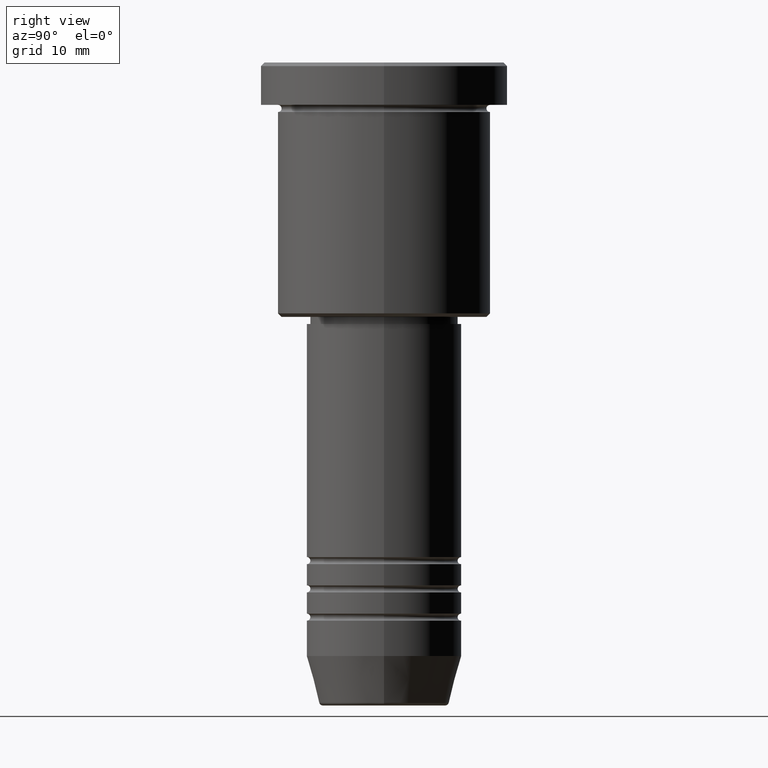
[diagram: clean part render]
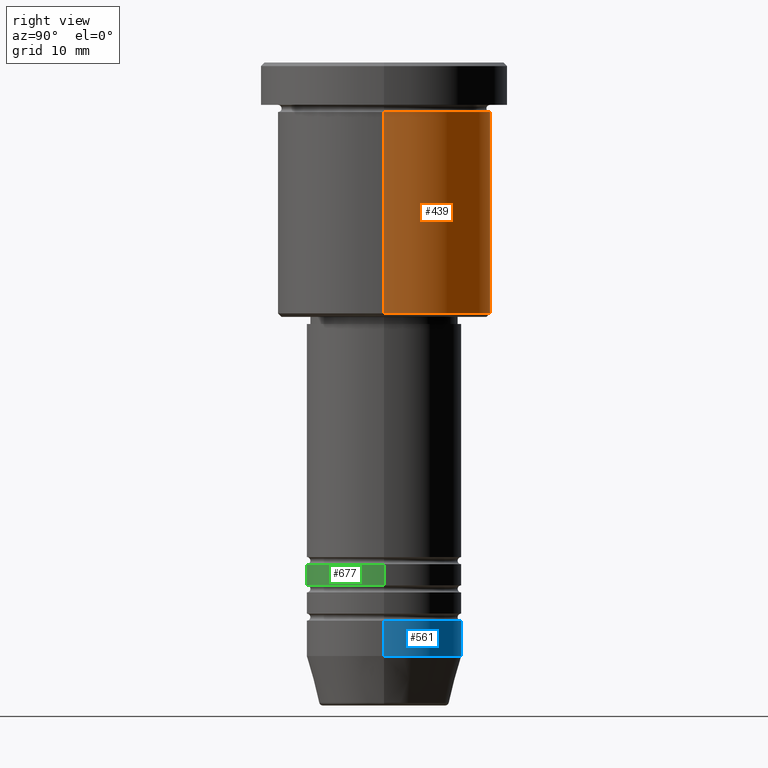
[diagram: same view with three faces highlighted in distinct colors, each labeled with its STEP entity id]
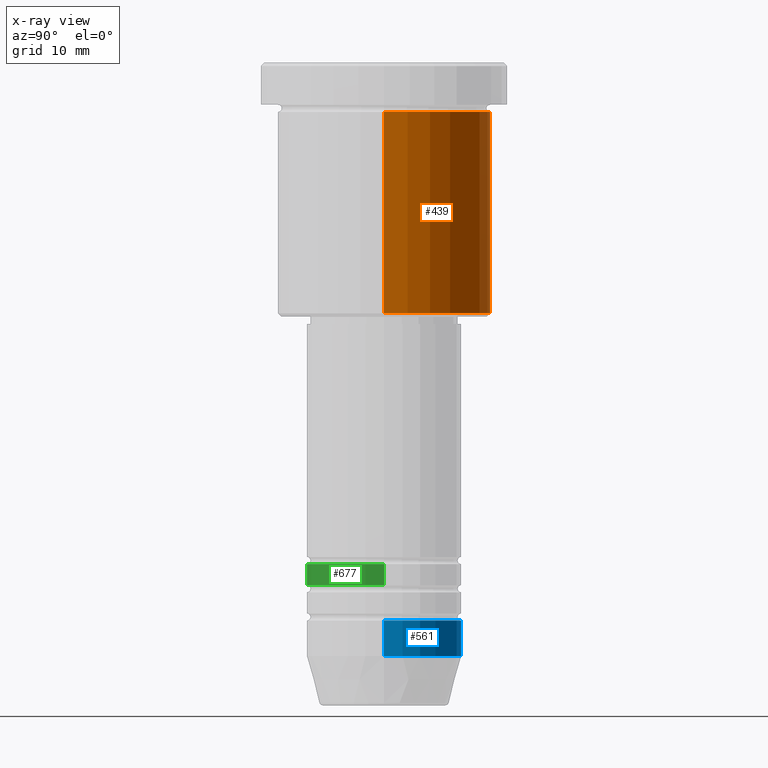
[diagram: x-ray of the same camera — body ghosted, the three highlighted faces saturated]
A machine part, right view with three faces highlighted in distinct colors.
The next image is the same camera in x-ray (body ghosted, the three faces saturated) — at least one of them is partly hidden behind the body in this view.
Their STEP definitions:

[orange] entity #439 — the highlighted cylindrical surface (partial cylindrical patch) has radius 15 mm, axis along (-0, -0, 1).
#86 = DIRECTION ( 'NONE',  ( 1.000000000000000000, 0.000000000000000000, 0.000000000000000000 ) ) ;
#91 = FACE_OUTER_BOUND ( 'NONE', #776, .T. ) ;
#103 = EDGE_CURVE ( 'NONE', #831, #508, #553, .T. ) ;
#112 = ORIENTED_EDGE ( 'NONE', *, *, #653, .F. ) ;
#173 = CYLINDRICAL_SURFACE ( 'NONE', #1108, 15.00000000000000000 ) ;
#178 = DIRECTION ( 'NONE',  ( -0.000000000000000000, -0.000000000000000000, 1.000000000000000000 ) ) ;
#229 = DIRECTION ( 'NONE',  ( -0.000000000000000000, -0.000000000000000000, 1.000000000000000000 ) ) ;
#264 = CARTESIAN_POINT ( 'NONE',  ( 15.00000000000000000, 0.000000000000000000, 0.000000000000000000 ) ) ;
#275 = CARTESIAN_POINT ( 'NONE',  ( -15.00000000000000000, 1.836970198721029589E-15, -35.49999999999999289 ) ) ;
#324 = VECTOR ( 'NONE', #755, 1000.000000000000000 ) ;
#326 = VECTOR ( 'NONE', #823, 1000.000000000000000 ) ;
#353 = ORIENTED_EDGE ( 'NONE', *, *, #378, .F. ) ;
#378 = EDGE_CURVE ( 'NONE', #604, #988, #1176, .T. ) ;
#436 = CARTESIAN_POINT ( 'NONE',  ( 0.000000000000000000, 0.000000000000000000, -35.49999999999999289 ) ) ;
#439 = ADVANCED_FACE ( 'NONE', ( #91 ), #173, .T. ) ;
#457 = CIRCLE ( 'NONE', #713, 15.00000000000000000 ) ;
#508 = VERTEX_POINT ( 'NONE', #1110 ) ;
#553 = LINE ( 'NONE', #663, #324 ) ;
#582 = CARTESIAN_POINT ( 'NONE',  ( 15.00000000000000000, 0.000000000000000000, -35.49999999999999289 ) ) ;
#604 = VERTEX_POINT ( 'NONE', #582 ) ;
#653 = EDGE_CURVE ( 'NONE', #988, #508, #817, .T. ) ;
#663 = CARTESIAN_POINT ( 'NONE',  ( -15.00000000000000000, 1.836970198721029589E-15, 0.000000000000000000 ) ) ;
#673 = CARTESIAN_POINT ( 'NONE',  ( 15.00000000000000000, 0.000000000000000000, -6.999999999999995559 ) ) ;
#713 = AXIS2_PLACEMENT_3D ( 'NONE', #436, #808, #1003 ) ;
#755 = DIRECTION ( 'NONE',  ( -0.000000000000000000, -0.000000000000000000, 1.000000000000000000 ) ) ;
#776 = EDGE_LOOP ( 'NONE', ( #847, #907, #112, #353 ) ) ;
#796 = EDGE_CURVE ( 'NONE', #604, #831, #457, .T. ) ;
#808 = DIRECTION ( 'NONE',  ( -0.000000000000000000, -0.000000000000000000, 1.000000000000000000 ) ) ;
#817 = CIRCLE ( 'NONE', #899, 15.00000000000000000 ) ;
#823 = DIRECTION ( 'NONE',  ( -0.000000000000000000, -0.000000000000000000, 1.000000000000000000 ) ) ;
#831 = VERTEX_POINT ( 'NONE', #275 ) ;
#847 = ORIENTED_EDGE ( 'NONE', *, *, #796, .T. ) ;
#899 = AXIS2_PLACEMENT_3D ( 'NONE', #1154, #229, #1135 ) ;
#905 = CARTESIAN_POINT ( 'NONE',  ( 0.000000000000000000, 0.000000000000000000, 0.000000000000000000 ) ) ;
#907 = ORIENTED_EDGE ( 'NONE', *, *, #103, .T. ) ;
#988 = VERTEX_POINT ( 'NONE', #673 ) ;
#1003 = DIRECTION ( 'NONE',  ( -1.000000000000000000, 0.000000000000000000, 0.000000000000000000 ) ) ;
#1108 = AXIS2_PLACEMENT_3D ( 'NONE', #905, #178, #86 ) ;
#1110 = CARTESIAN_POINT ( 'NONE',  ( -15.00000000000000000, 1.836970198721029589E-15, -6.999999999999995559 ) ) ;
#1135 = DIRECTION ( 'NONE',  ( 1.000000000000000000, 0.000000000000000000, 0.000000000000000000 ) ) ;
#1154 = CARTESIAN_POINT ( 'NONE',  ( 0.000000000000000000, 0.000000000000000000, -6.999999999999995559 ) ) ;
#1176 = LINE ( 'NONE', #264, #326 ) ;

[blue] entity #561 — the highlighted cylindrical surface (partial cylindrical patch) has radius 11 mm, axis along (-0, -0, 1).
#4 = CIRCLE ( 'NONE', #1111, 11.00000000000000000 ) ;
#28 = CARTESIAN_POINT ( 'NONE',  ( -11.00000000000000000, 1.347111479062088405E-15, -78.99999999999998579 ) ) ;
#43 = VECTOR ( 'NONE', #781, 1000.000000000000000 ) ;
#67 = VERTEX_POINT ( 'NONE', #1067 ) ;
#84 = VERTEX_POINT ( 'NONE', #620 ) ;
#109 = DIRECTION ( 'NONE',  ( 1.000000000000000000, 0.000000000000000000, 0.000000000000000000 ) ) ;
#158 = CARTESIAN_POINT ( 'NONE',  ( -11.00000000000000000, 1.347111479062088405E-15, 0.000000000000000000 ) ) ;
#246 = LINE ( 'NONE', #158, #43 ) ;
#272 = CARTESIAN_POINT ( 'NONE',  ( 0.000000000000000000, 0.000000000000000000, -83.99999999999998579 ) ) ;
#304 = CARTESIAN_POINT ( 'NONE',  ( 11.00000000000000000, 0.000000000000000000, 0.000000000000000000 ) ) ;
#367 = DIRECTION ( 'NONE',  ( 1.000000000000000000, 0.000000000000000000, 0.000000000000000000 ) ) ;
#383 = VECTOR ( 'NONE', #912, 1000.000000000000000 ) ;
#460 = EDGE_CURVE ( 'NONE', #886, #67, #1168, .T. ) ;
#551 = DIRECTION ( 'NONE',  ( -0.000000000000000000, -0.000000000000000000, 1.000000000000000000 ) ) ;
#555 = DIRECTION ( 'NONE',  ( -0.000000000000000000, -0.000000000000000000, 1.000000000000000000 ) ) ;
#556 = AXIS2_PLACEMENT_3D ( 'NONE', #1039, #739, #109 ) ;
#561 = ADVANCED_FACE ( 'NONE', ( #932 ), #676, .T. ) ;
#580 = LINE ( 'NONE', #304, #383 ) ;
#620 = CARTESIAN_POINT ( 'NONE',  ( 11.00000000000000000, 0.000000000000000000, -78.99999999999998579 ) ) ;
#676 = CYLINDRICAL_SURFACE ( 'NONE', #556, 11.00000000000000000 ) ;
#715 = EDGE_CURVE ( 'NONE', #67, #1016, #246, .T. ) ;
#739 = DIRECTION ( 'NONE',  ( -0.000000000000000000, -0.000000000000000000, 1.000000000000000000 ) ) ;
#751 = ORIENTED_EDGE ( 'NONE', *, *, #987, .F. ) ;
#781 = DIRECTION ( 'NONE',  ( -0.000000000000000000, -0.000000000000000000, 1.000000000000000000 ) ) ;
#797 = ORIENTED_EDGE ( 'NONE', *, *, #715, .T. ) ;
#835 = AXIS2_PLACEMENT_3D ( 'NONE', #272, #551, #1011 ) ;
#848 = CARTESIAN_POINT ( 'NONE',  ( 0.000000000000000000, 0.000000000000000000, -78.99999999999998579 ) ) ;
#886 = VERTEX_POINT ( 'NONE', #892 ) ;
#892 = CARTESIAN_POINT ( 'NONE',  ( 11.00000000000000000, 0.000000000000000000, -83.99999999999998579 ) ) ;
#912 = DIRECTION ( 'NONE',  ( -0.000000000000000000, -0.000000000000000000, 1.000000000000000000 ) ) ;
#932 = FACE_OUTER_BOUND ( 'NONE', #990, .T. ) ;
#979 = ORIENTED_EDGE ( 'NONE', *, *, #1024, .F. ) ;
#987 = EDGE_CURVE ( 'NONE', #886, #84, #580, .T. ) ;
#990 = EDGE_LOOP ( 'NONE', ( #1150, #797, #979, #751 ) ) ;
#1011 = DIRECTION ( 'NONE',  ( 1.000000000000000000, 0.000000000000000000, 0.000000000000000000 ) ) ;
#1016 = VERTEX_POINT ( 'NONE', #28 ) ;
#1024 = EDGE_CURVE ( 'NONE', #84, #1016, #4, .T. ) ;
#1039 = CARTESIAN_POINT ( 'NONE',  ( 0.000000000000000000, 0.000000000000000000, 0.000000000000000000 ) ) ;
#1067 = CARTESIAN_POINT ( 'NONE',  ( -11.00000000000000000, 1.347111479062088405E-15, -83.99999999999998579 ) ) ;
#1111 = AXIS2_PLACEMENT_3D ( 'NONE', #848, #555, #367 ) ;
#1150 = ORIENTED_EDGE ( 'NONE', *, *, #460, .T. ) ;
#1168 = CIRCLE ( 'NONE', #835, 11.00000000000000000 ) ;

[green] entity #677 — the highlighted cylindrical surface (partial cylindrical patch) has radius 11 mm, axis along (-0, -0, 1).
#51 = ORIENTED_EDGE ( 'NONE', *, *, #972, .F. ) ;
#66 = CARTESIAN_POINT ( 'NONE',  ( -11.00000000000000355, 1.347111479062088996E-15, -73.99999999999990052 ) ) ;
#104 = CARTESIAN_POINT ( 'NONE',  ( 11.00000000000000355, 0.000000000000000000, -73.99999999999990052 ) ) ;
#176 = ORIENTED_EDGE ( 'NONE', *, *, #724, .F. ) ;
#195 = LINE ( 'NONE', #828, #305 ) ;
#208 = VECTOR ( 'NONE', #1064, 1000.000000000000000 ) ;
#234 = CARTESIAN_POINT ( 'NONE',  ( 11.00000000000000000, 0.000000000000000000, -70.99999999999988631 ) ) ;
#242 = EDGE_CURVE ( 'NONE', #430, #579, #343, .T. ) ;
#298 = DIRECTION ( 'NONE',  ( 1.000000000000000000, 0.000000000000000000, 0.000000000000000000 ) ) ;
#302 = DIRECTION ( 'NONE',  ( 1.000000000000000000, 0.000000000000000000, 0.000000000000000000 ) ) ;
#305 = VECTOR ( 'NONE', #587, 1000.000000000000000 ) ;
#321 = CARTESIAN_POINT ( 'NONE',  ( 0.000000000000000000, 0.000000000000000000, -73.99999999999990052 ) ) ;
#323 = CARTESIAN_POINT ( 'NONE',  ( -11.00000000000000000, 1.347111479062088602E-15, -70.99999999999988631 ) ) ;
#343 = CIRCLE ( 'NONE', #1072, 11.00000000000000355 ) ;
#372 = ORIENTED_EDGE ( 'NONE', *, *, #588, .T. ) ;
#396 = DIRECTION ( 'NONE',  ( -0.000000000000000000, -0.000000000000000000, 1.000000000000000000 ) ) ;
#414 = DIRECTION ( 'NONE',  ( -0.000000000000000000, -0.000000000000000000, 1.000000000000000000 ) ) ;
#423 = AXIS2_PLACEMENT_3D ( 'NONE', #970, #414, #505 ) ;
#430 = VERTEX_POINT ( 'NONE', #66 ) ;
#461 = ORIENTED_EDGE ( 'NONE', *, *, #242, .T. ) ;
#505 = DIRECTION ( 'NONE',  ( 1.000000000000000000, 0.000000000000000000, 0.000000000000000000 ) ) ;
#531 = CARTESIAN_POINT ( 'NONE',  ( -11.00000000000000178, 1.347111479062088602E-15, 0.000000000000000000 ) ) ;
#579 = VERTEX_POINT ( 'NONE', #104 ) ;
#587 = DIRECTION ( 'NONE',  ( -0.000000000000000000, -0.000000000000000000, 1.000000000000000000 ) ) ;
#588 = EDGE_CURVE ( 'NONE', #579, #1137, #195, .T. ) ;
#610 = FACE_OUTER_BOUND ( 'NONE', #1007, .T. ) ;
#677 = ADVANCED_FACE ( 'NONE', ( #610 ), #981, .T. ) ;
#703 = LINE ( 'NONE', #531, #208 ) ;
#724 = EDGE_CURVE ( 'NONE', #430, #1115, #703, .T. ) ;
#742 = DIRECTION ( 'NONE',  ( -0.000000000000000000, -0.000000000000000000, 1.000000000000000000 ) ) ;
#828 = CARTESIAN_POINT ( 'NONE',  ( 11.00000000000000178, 0.000000000000000000, 0.000000000000000000 ) ) ;
#863 = CIRCLE ( 'NONE', #884, 11.00000000000000000 ) ;
#884 = AXIS2_PLACEMENT_3D ( 'NONE', #1122, #742, #298 ) ;
#970 = CARTESIAN_POINT ( 'NONE',  ( 0.000000000000000000, 0.000000000000000000, 0.000000000000000000 ) ) ;
#972 = EDGE_CURVE ( 'NONE', #1115, #1137, #863, .T. ) ;
#981 = CYLINDRICAL_SURFACE ( 'NONE', #423, 11.00000000000000178 ) ;
#1007 = EDGE_LOOP ( 'NONE', ( #176, #461, #372, #51 ) ) ;
#1064 = DIRECTION ( 'NONE',  ( -0.000000000000000000, -0.000000000000000000, 1.000000000000000000 ) ) ;
#1072 = AXIS2_PLACEMENT_3D ( 'NONE', #321, #396, #302 ) ;
#1115 = VERTEX_POINT ( 'NONE', #323 ) ;
#1122 = CARTESIAN_POINT ( 'NONE',  ( 0.000000000000000000, 0.000000000000000000, -70.99999999999988631 ) ) ;
#1137 = VERTEX_POINT ( 'NONE', #234 ) ;